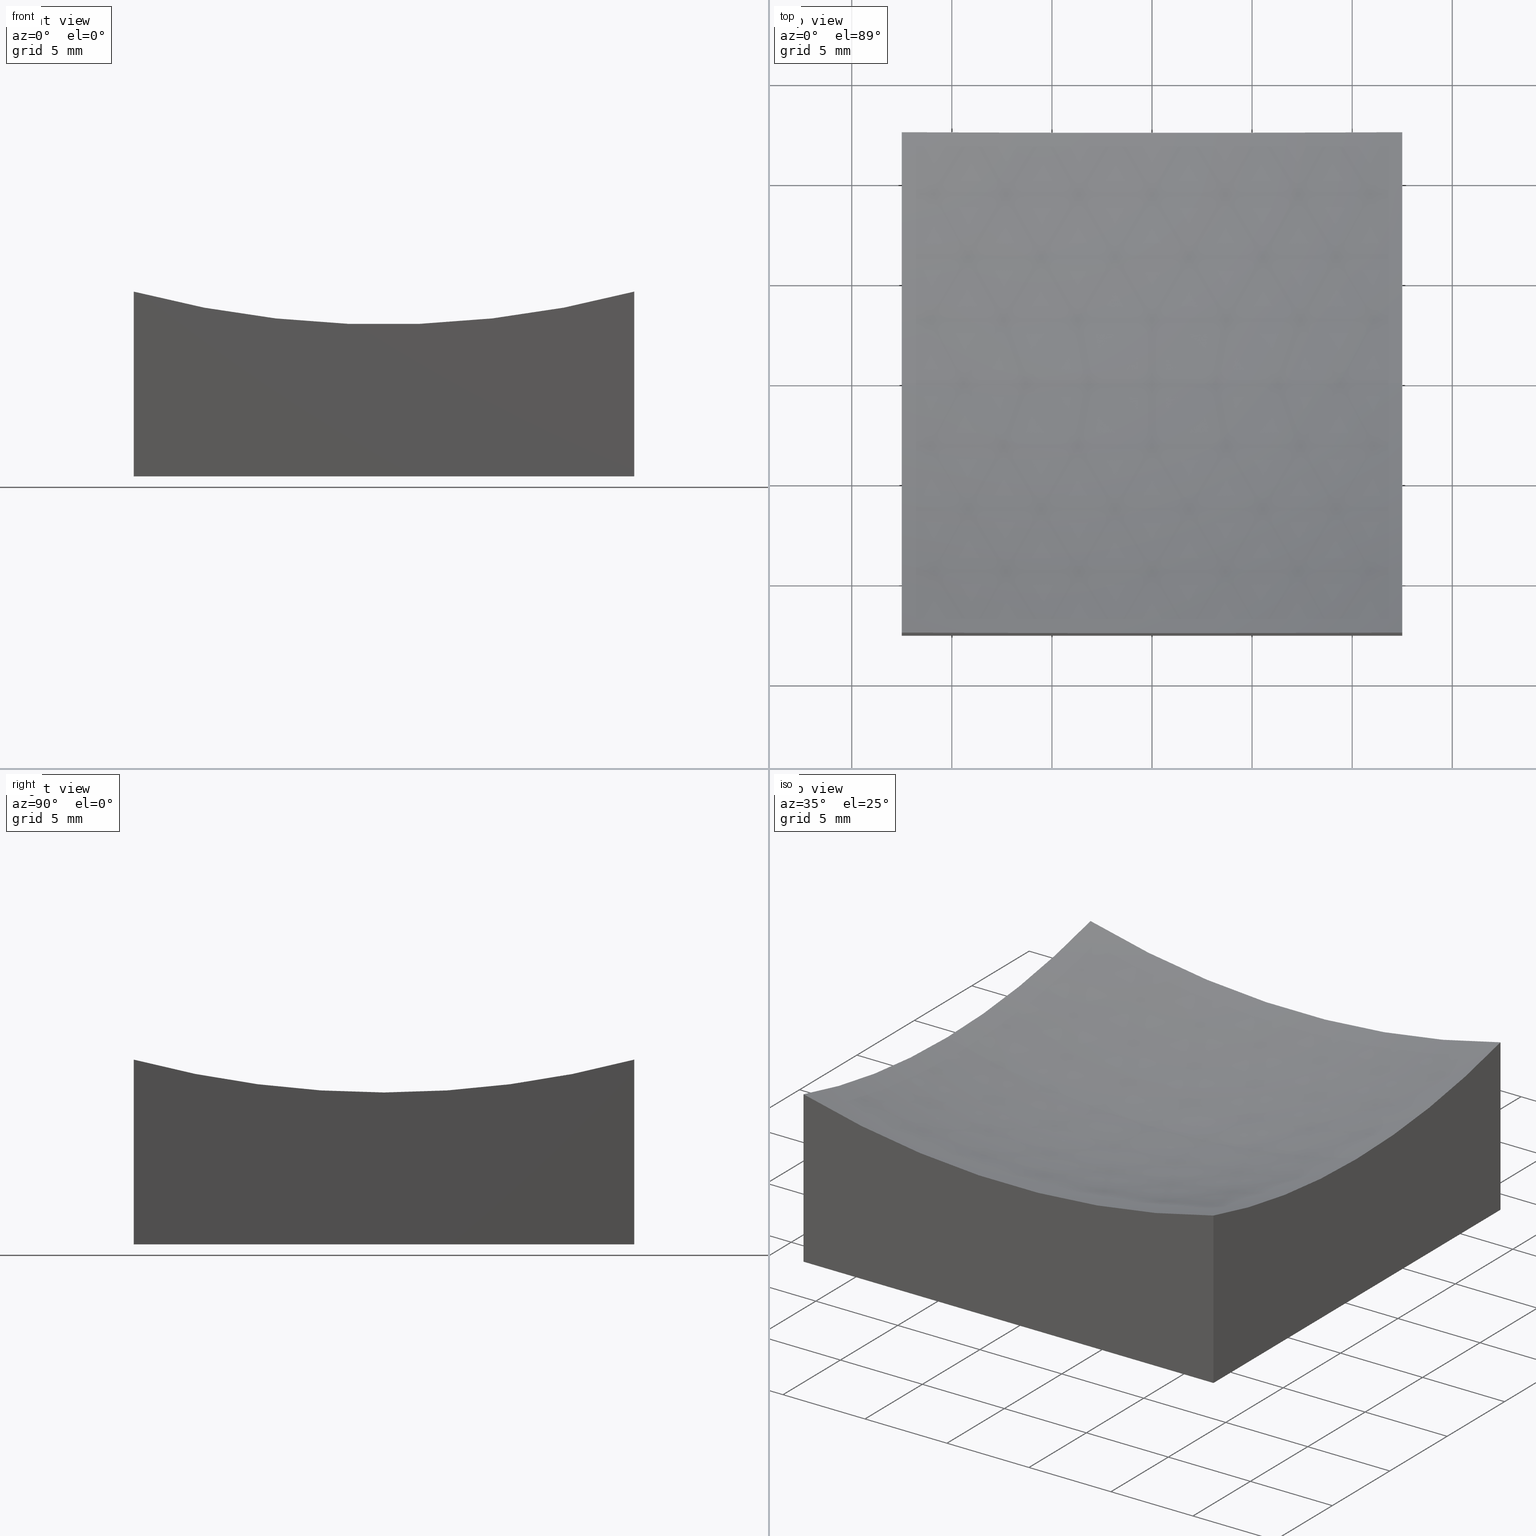
[diagram: canonical four-view strip — front | top / right | iso, engineering-drawing reading convention]
A machine part, canonical four-view strip (front | top / right | iso — engineering-drawing reading convention). The complete STEP part file that produces these views, byte-faithful:
ISO-10303-21;
HEADER;
FILE_DESCRIPTION (( 'STEP AP214' ),
    '1' );
FILE_NAME ('270032.STEP',
    '2020-06-05T05:42:06',
    ( '' ),
    ( '' ),
    'SwSTEP 2.0',
    'SolidWorks 2019',
    '' );
FILE_SCHEMA (( 'AUTOMOTIVE_DESIGN' ));
ENDSEC;

DATA;
#1 = VECTOR ( 'NONE', #69, 1000.000000000000000 ) ;
#2 = FACE_OUTER_BOUND ( 'NONE', #224, .T. ) ;
#3 = VERTEX_POINT ( 'NONE', #133 ) ;
#4 = STYLED_ITEM ( 'NONE', ( #85 ), #55 ) ;
#5 = EDGE_CURVE ( 'NONE', #113, #237, #131, .T. ) ;
#6 = CARTESIAN_POINT ( 'NONE',  ( -12.49999999999999645, -12.50000000000000000, 0.0000000000000000000 ) ) ;
#7 = ORIENTED_EDGE ( 'NONE', *, *, #142, .T. ) ;
#8 = ORIENTED_EDGE ( 'NONE', *, *, #23, .T. ) ;
#9 = ORIENTED_EDGE ( 'NONE', *, *, #219, .F. ) ;
#10 = DIRECTION ( 'NONE',  ( 1.000000000000000000, 0.0000000000000000000, 0.0000000000000000000 ) ) ;
#11 = CARTESIAN_POINT ( 'NONE',  ( 12.50000000000000355, -12.50000000000000000, 20.00000000000000000 ) ) ;
#12 = CIRCLE ( 'NONE', #17, 50.00000000000000000 ) ;
#13 = CARTESIAN_POINT ( 'NONE',  ( 12.50000000000000000, 12.50000000000000000, 20.00000000000000000 ) ) ;
#14 = ADVANCED_FACE ( 'NONE', ( #32 ), #189, .F. ) ;
#15 = DIRECTION ( 'NONE',  ( 0.0000000000000000000, 1.000000000000000000, 0.0000000000000000000 ) ) ;
#16 = DIRECTION ( 'NONE',  ( -0.0000000000000000000, -0.0000000000000000000, -1.000000000000000000 ) ) ;
#17 = AXIS2_PLACEMENT_3D ( 'NONE', #217, #187, #167 ) ;
#18 = PRODUCT_DEFINITION_CONTEXT ( 'detailed design', #110, 'design' ) ;
#19 =( GEOMETRIC_REPRESENTATION_CONTEXT ( 3 ) GLOBAL_UNCERTAINTY_ASSIGNED_CONTEXT ( ( #115 ) ) GLOBAL_UNIT_ASSIGNED_CONTEXT ( ( #205, #105, #25 ) ) REPRESENTATION_CONTEXT ( 'NONE', 'WORKASPACE' ) );
#20 = DIRECTION ( 'NONE',  ( 0.0000000000000000000, 1.000000000000000000, 0.0000000000000000000 ) ) ;
#21 = ORIENTED_EDGE ( 'NONE', *, *, #171, .T. ) ;
#22 = DIRECTION ( 'NONE',  ( -0.0000000000000000000, 1.000000000000000000, 0.0000000000000000000 ) ) ;
#23 = EDGE_CURVE ( 'NONE', #168, #159, #73, .T. ) ;
#24 = VERTEX_POINT ( 'NONE', #239 ) ;
#25 =( NAMED_UNIT ( * ) SI_UNIT ( $, .STERADIAN. ) SOLID_ANGLE_UNIT ( ) );
#26 = ORIENTED_EDGE ( 'NONE', *, *, #5, .T. ) ;
#27 = EDGE_CURVE ( 'NONE', #169, #113, #225, .T. ) ;
#28 = VECTOR ( 'NONE', #207, 1000.000000000000000 ) ;
#29 = DIRECTION ( 'NONE',  ( -0.0000000000000000000, -0.0000000000000000000, -1.000000000000000000 ) ) ;
#30 = EDGE_LOOP ( 'NONE', ( #75, #92, #238, #90, #52 ) ) ;
#31 = LINE ( 'NONE', #144, #53 ) ;
#32 = FACE_OUTER_BOUND ( 'NONE', #114, .T. ) ;
#33 = MANIFOLD_SOLID_BREP ( '�г�-��ת2', #175 ) ;
#34 = FILL_AREA_STYLE ('',( #208 ) ) ;
#35 = DIRECTION ( 'NONE',  ( -0.0000000000000000000, 1.000000000000000000, 0.0000000000000000000 ) ) ;
#36 = SURFACE_STYLE_USAGE ( .BOTH. , #126 ) ;
#37 = DIRECTION ( 'NONE',  ( 0.0000000000000000000, 1.000000000000000000, 0.0000000000000000000 ) ) ;
#38 = CARTESIAN_POINT ( 'NONE',  ( -12.50000000000000000, 12.50000000000000000, 9.229282665325730051 ) ) ;
#39 = MECHANICAL_DESIGN_GEOMETRIC_PRESENTATION_REPRESENTATION (  '', ( #128 ), #106 ) ;
#40 = FACE_OUTER_BOUND ( 'NONE', #30, .T. ) ;
#41 = CIRCLE ( 'NONE', #77, 48.41229182759271055 ) ;
#42 = DIRECTION ( 'NONE',  ( -1.433291761649752693E-16, 1.000000000000000000, 0.0000000000000000000 ) ) ;
#43 = EDGE_CURVE ( 'NONE', #3, #24, #118, .T. ) ;
#44 =( NAMED_UNIT ( * ) SI_UNIT ( $, .STERADIAN. ) SOLID_ANGLE_UNIT ( ) );
#45 = DIRECTION ( 'NONE',  ( -1.433291761649752693E-16, 1.000000000000000000, 0.0000000000000000000 ) ) ;
#46 = CARTESIAN_POINT ( 'NONE',  ( 12.50000000000000000, -9.629649721936179265E-32, 7.587708172407285012 ) ) ;
#47 = SURFACE_STYLE_FILL_AREA ( #34 ) ;
#48 = FILL_AREA_STYLE ('',( #104 ) ) ;
#49 = AXIS2_PLACEMENT_3D ( 'NONE', #222, #248, #135 ) ;
#50 = EDGE_LOOP ( 'NONE', ( #204, #218, #145, #183 ) ) ;
#51 = SHAPE_DEFINITION_REPRESENTATION ( #100, #55 ) ;
#52 = ORIENTED_EDGE ( 'NONE', *, *, #127, .F. ) ;
#53 = VECTOR ( 'NONE', #140, 1000.000000000000000 ) ;
#54 = EDGE_LOOP ( 'NONE', ( #188, #21, #7, #72, #66 ) ) ;
#55 = ADVANCED_BREP_SHAPE_REPRESENTATION ( '270032', ( #33, #117 ), #137 ) ;
#56 = PRODUCT_CONTEXT ( 'NONE', #177, 'mechanical' ) ;
#57 = PLANE ( 'NONE',  #202 ) ;
#58 = DIRECTION ( 'NONE',  ( 0.0000000000000000000, 0.0000000000000000000, 1.000000000000000000 ) ) ;
#59 = DIRECTION ( 'NONE',  ( 0.0000000000000000000, -0.0000000000000000000, 1.000000000000000000 ) ) ;
#60 =( LENGTH_UNIT ( ) NAMED_UNIT ( * ) SI_UNIT ( .MILLI., .METRE. ) );
#61 = AXIS2_PLACEMENT_3D ( 'NONE', #226, #161, #233 ) ;
#62 = AXIS2_PLACEMENT_3D ( 'NONE', #216, #35, #10 ) ;
#63 = CARTESIAN_POINT ( 'NONE',  ( -12.49999999999999645, -12.50000000000000000, 9.229282665325730051 ) ) ;
#64 = EDGE_CURVE ( 'NONE', #3, #190, #147, .T. ) ;
#65 = FACE_OUTER_BOUND ( 'NONE', #88, .T. ) ;
#66 = ORIENTED_EDGE ( 'NONE', *, *, #219, .T. ) ;
#67 = CARTESIAN_POINT ( 'NONE',  ( 12.50000000000000000, 12.50000000000000000, 0.0000000000000000000 ) ) ;
#68 = APPLICATION_PROTOCOL_DEFINITION ( 'draft international standard', 'automotive_design', 1998, #177 ) ;
#69 = DIRECTION ( 'NONE',  ( 1.000000000000000000, 0.0000000000000000000, 0.0000000000000000000 ) ) ;
#70 = ORIENTED_EDGE ( 'NONE', *, *, #235, .T. ) ;
#71 = LINE ( 'NONE', #6, #1 ) ;
#72 = ORIENTED_EDGE ( 'NONE', *, *, #27, .T. ) ;
#73 = CIRCLE ( 'NONE', #220, 50.00000000000000000 ) ;
#74 = ORIENTED_EDGE ( 'NONE', *, *, #180, .T. ) ;
#75 = ORIENTED_EDGE ( 'NONE', *, *, #64, .F. ) ;
#76 = ORIENTED_EDGE ( 'NONE', *, *, #27, .F. ) ;
#77 = AXIS2_PLACEMENT_3D ( 'NONE', #87, #236, #45 ) ;
#78 = PLANE ( 'NONE',  #196 ) ;
#79 = DIRECTION ( 'NONE',  ( 0.0000000000000000000, 0.0000000000000000000, 1.000000000000000000 ) ) ;
#80 = PLANE ( 'NONE',  #96 ) ;
#81 = DIRECTION ( 'NONE',  ( -1.387778780781445676E-16, 1.000000000000000000, 0.0000000000000000000 ) ) ;
#82 = PRODUCT_RELATED_PRODUCT_CATEGORY ( 'part', '', ( #223 ) ) ;
#83 = CIRCLE ( 'NONE', #86, 48.41229182759271765 ) ;
#84 = PLANE ( 'NONE',  #61 ) ;
#85 = PRESENTATION_STYLE_ASSIGNMENT (( #201 ) ) ;
#86 = AXIS2_PLACEMENT_3D ( 'NONE', #174, #245, #228 ) ;
#87 = CARTESIAN_POINT ( 'NONE',  ( -12.49999999999999822, -1.734723475976807883E-15, 56.00000000000000000 ) ) ;
#88 = EDGE_LOOP ( 'NONE', ( #93, #240, #91, #76 ) ) ;
#89 = DIRECTION ( 'NONE',  ( 1.387778780781445676E-16, -1.000000000000000000, 0.0000000000000000000 ) ) ;
#90 = ORIENTED_EDGE ( 'NONE', *, *, #197, .F. ) ;
#91 = ORIENTED_EDGE ( 'NONE', *, *, #5, .F. ) ;
#92 = ORIENTED_EDGE ( 'NONE', *, *, #43, .T. ) ;
#93 = ORIENTED_EDGE ( 'NONE', *, *, #155, .F. ) ;
#94 = PLANE ( 'NONE',  #193 ) ;
#95 = VECTOR ( 'NONE', #89, 1000.000000000000000 ) ;
#96 = AXIS2_PLACEMENT_3D ( 'NONE', #13, #156, #81 ) ;
#97 = CARTESIAN_POINT ( 'NONE',  ( -12.49999999999999645, -12.50000000000000000, 20.00000000000000000 ) ) ;
#98 = ADVANCED_FACE ( 'NONE', ( #40 ), #80, .T. ) ;
#99 = CARTESIAN_POINT ( 'NONE',  ( 6.858022075225178552E-15, -12.50000000000000000, 56.00000000000000000 ) ) ;
#100 = PRODUCT_DEFINITION_SHAPE ( 'NONE', 'NONE',  #252 ) ;
#101 = EDGE_CURVE ( 'NONE', #109, #116, #119, .T. ) ;
#102 = DIRECTION ( 'NONE',  ( 0.0000000000000000000, 0.0000000000000000000, 1.000000000000000000 ) ) ;
#103 = ORIENTED_EDGE ( 'NONE', *, *, #247, .F. ) ;
#104 = FILL_AREA_STYLE_COLOUR ( '', #206 ) ;
#105 =( NAMED_UNIT ( * ) PLANE_ANGLE_UNIT ( ) SI_UNIT ( $, .RADIAN. ) );
#106 =( GEOMETRIC_REPRESENTATION_CONTEXT ( 3 ) GLOBAL_UNCERTAINTY_ASSIGNED_CONTEXT ( ( #139 ) ) GLOBAL_UNIT_ASSIGNED_CONTEXT ( ( #60, #138, #44 ) ) REPRESENTATION_CONTEXT ( 'NONE', 'WORKASPACE' ) );
#107 = CARTESIAN_POINT ( 'NONE',  ( 6.858022075225178552E-15, 0.0000000000000000000, 56.00000000000000000 ) ) ;
#108 = PRESENTATION_LAYER_ASSIGNMENT (  '', '', ( #4 ) ) ;
#109 = VERTEX_POINT ( 'NONE', #63 ) ;
#110 = APPLICATION_CONTEXT ( 'automotive_design' ) ;
#111 = EDGE_CURVE ( 'NONE', #3, #109, #203, .T. ) ;
#112 = ORIENTED_EDGE ( 'NONE', *, *, #64, .T. ) ;
#113 = VERTEX_POINT ( 'NONE', #157 ) ;
#114 = EDGE_LOOP ( 'NONE', ( #209, #8, #132, #215, #112 ) ) ;
#115 = UNCERTAINTY_MEASURE_WITH_UNIT (LENGTH_MEASURE( 1.000000000000000082E-05 ), #205, 'distance_accuracy_value', 'NONE');
#116 = VERTEX_POINT ( 'NONE', #178 ) ;
#117 = AXIS2_PLACEMENT_3D ( 'NONE', #213, #58, #210 ) ;
#118 = LINE ( 'NONE', #11, #130 ) ;
#119 = LINE ( 'NONE', #97, #244 ) ;
#120 = VECTOR ( 'NONE', #211, 1000.000000000000000 ) ;
#121 = ADVANCED_FACE ( 'NONE', ( #249 ), #94, .F. ) ;
#122 = DIRECTION ( 'NONE',  ( -1.387778780781445676E-16, 1.000000000000000000, 0.0000000000000000000 ) ) ;
#123 = SPHERICAL_SURFACE ( 'NONE', #124, 50.00000000000000000 ) ;
#124 = AXIS2_PLACEMENT_3D ( 'NONE', #107, #22, #200 ) ;
#125 =( LENGTH_UNIT ( ) NAMED_UNIT ( * ) SI_UNIT ( .MILLI., .METRE. ) );
#126 = SURFACE_SIDE_STYLE ('',( #47 ) ) ;
#127 = EDGE_CURVE ( 'NONE', #190, #182, #83, .T. ) ;
#128 = STYLED_ITEM ( 'NONE', ( #195 ), #33 ) ;
#129 = SURFACE_STYLE_FILL_AREA ( #48 ) ;
#130 = VECTOR ( 'NONE', #192, 1000.000000000000000 ) ;
#131 = LINE ( 'NONE', #143, #28 ) ;
#132 = ORIENTED_EDGE ( 'NONE', *, *, #171, .F. ) ;
#133 = CARTESIAN_POINT ( 'NONE',  ( 12.50000000000000355, -12.50000000000000000, 9.229282665325730051 ) ) ;
#134 = CARTESIAN_POINT ( 'NONE',  ( -12.50000000000000000, 12.50000000000000000, 20.00000000000000000 ) ) ;
#135 = DIRECTION ( 'NONE',  ( -1.433291761649752447E-16, 1.000000000000000000, 0.0000000000000000000 ) ) ;
#136 = VECTOR ( 'NONE', #29, 1000.000000000000000 ) ;
#137 =( GEOMETRIC_REPRESENTATION_CONTEXT ( 3 ) GLOBAL_UNCERTAINTY_ASSIGNED_CONTEXT ( ( #151 ) ) GLOBAL_UNIT_ASSIGNED_CONTEXT ( ( #125, #184, #221 ) ) REPRESENTATION_CONTEXT ( 'NONE', 'WORKASPACE' ) );
#138 =( NAMED_UNIT ( * ) PLANE_ANGLE_UNIT ( ) SI_UNIT ( $, .RADIAN. ) );
#139 = UNCERTAINTY_MEASURE_WITH_UNIT (LENGTH_MEASURE( 1.000000000000000082E-05 ), #60, 'distance_accuracy_value', 'NONE');
#140 = DIRECTION ( 'NONE',  ( 1.387778780781445676E-16, -1.000000000000000000, 0.0000000000000000000 ) ) ;
#141 = CARTESIAN_POINT ( 'NONE',  ( -12.50000000000000000, 12.50000000000000000, 0.0000000000000000000 ) ) ;
#142 = EDGE_CURVE ( 'NONE', #159, #169, #231, .T. ) ;
#143 = CARTESIAN_POINT ( 'NONE',  ( -12.50000000000000000, 12.50000000000000000, 0.0000000000000000000 ) ) ;
#144 = CARTESIAN_POINT ( 'NONE',  ( 12.50000000000000000, 12.50000000000000000, 0.0000000000000000000 ) ) ;
#145 = ORIENTED_EDGE ( 'NONE', *, *, #101, .T. ) ;
#146 = SURFACE_SIDE_STYLE ('',( #129 ) ) ;
#147 = CIRCLE ( 'NONE', #49, 48.41229182759271765 ) ;
#148 = CARTESIAN_POINT ( 'NONE',  ( -12.50000000000000000, 12.50000000000000000, 20.00000000000000000 ) ) ;
#149 = ORIENTED_EDGE ( 'NONE', *, *, #127, .T. ) ;
#150 = ADVANCED_FACE ( 'NONE', ( #176 ), #78, .F. ) ;
#151 = UNCERTAINTY_MEASURE_WITH_UNIT (LENGTH_MEASURE( 1.000000000000000082E-05 ), #125, 'distance_accuracy_value', 'NONE');
#152 = DIRECTION ( 'NONE',  ( -1.000000000000000000, 1.224646799147353207E-16, 0.0000000000000000000 ) ) ;
#153 = CARTESIAN_POINT ( 'NONE',  ( -12.50000000000000000, 12.50000000000000000, 20.00000000000000000 ) ) ;
#154 = MECHANICAL_DESIGN_GEOMETRIC_PRESENTATION_REPRESENTATION (  '', ( #4 ), #19 ) ;
#155 = EDGE_CURVE ( 'NONE', #182, #169, #173, .T. ) ;
#156 = DIRECTION ( 'NONE',  ( 1.000000000000000000, 1.387778780781445676E-16, -0.0000000000000000000 ) ) ;
#157 = CARTESIAN_POINT ( 'NONE',  ( -12.50000000000000000, 12.50000000000000000, 0.0000000000000000000 ) ) ;
#158 = DIRECTION ( 'NONE',  ( 0.0000000000000000000, -0.0000000000000000000, 1.000000000000000000 ) ) ;
#159 = VERTEX_POINT ( 'NONE', #179 ) ;
#160 = PRESENTATION_LAYER_ASSIGNMENT (  '', '', ( #128 ) ) ;
#161 = DIRECTION ( 'NONE',  ( 0.0000000000000000000, 0.0000000000000000000, -1.000000000000000000 ) ) ;
#162 = ADVANCED_FACE ( 'NONE', ( #250 ), #84, .T. ) ;
#163 = CARTESIAN_POINT ( 'NONE',  ( 12.50000000000000000, 12.50000000000000000, 9.229282665325730051 ) ) ;
#164 = LINE ( 'NONE', #141, #95 ) ;
#165 = ADVANCED_FACE ( 'NONE', ( #65 ), #57, .T. ) ;
#166 = ORIENTED_EDGE ( 'NONE', *, *, #142, .F. ) ;
#167 = DIRECTION ( 'NONE',  ( 0.0000000000000000000, 0.0000000000000000000, -1.000000000000000000 ) ) ;
#168 = VERTEX_POINT ( 'NONE', #214 ) ;
#169 = VERTEX_POINT ( 'NONE', #38 ) ;
#170 = ORIENTED_EDGE ( 'NONE', *, *, #155, .T. ) ;
#171 = EDGE_CURVE ( 'NONE', #109, #159, #41, .T. ) ;
#172 = CARTESIAN_POINT ( 'NONE',  ( 6.858022075225178552E-15, 0.0000000000000000000, 56.00000000000000000 ) ) ;
#173 = CIRCLE ( 'NONE', #185, 48.41229182759270344 ) ;
#174 = CARTESIAN_POINT ( 'NONE',  ( 12.50000000000000178, 1.734723475976806503E-15, 56.00000000000000000 ) ) ;
#175 = CLOSED_SHELL ( 'NONE', ( #14, #165, #150, #121, #98, #162, #229 ) ) ;
#176 = FACE_OUTER_BOUND ( 'NONE', #54, .T. ) ;
#177 = APPLICATION_CONTEXT ( 'automotive_design' ) ;
#178 = CARTESIAN_POINT ( 'NONE',  ( -12.49999999999999645, -12.50000000000000000, 0.0000000000000000000 ) ) ;
#179 = CARTESIAN_POINT ( 'NONE',  ( -12.49999999999999822, 1.530808498934192113E-15, 7.587708172407288565 ) ) ;
#180 = EDGE_CURVE ( 'NONE', #237, #24, #31, .T. ) ;
#181 = COLOUR_RGB ( '',1.000000000000000000, 1.000000000000000000, 1.000000000000000000 ) ;
#182 = VERTEX_POINT ( 'NONE', #163 ) ;
#183 = ORIENTED_EDGE ( 'NONE', *, *, #247, .T. ) ;
#184 =( NAMED_UNIT ( * ) PLANE_ANGLE_UNIT ( ) SI_UNIT ( $, .RADIAN. ) );
#185 = AXIS2_PLACEMENT_3D ( 'NONE', #198, #20, #102 ) ;
#186 = ORIENTED_EDGE ( 'NONE', *, *, #23, .F. ) ;
#187 = DIRECTION ( 'NONE',  ( 0.0000000000000000000, -1.000000000000000000, 0.0000000000000000000 ) ) ;
#188 = ORIENTED_EDGE ( 'NONE', *, *, #101, .F. ) ;
#189 = SPHERICAL_SURFACE ( 'NONE', #62, 50.00000000000000000 ) ;
#190 = VERTEX_POINT ( 'NONE', #46 ) ;
#191 = EDGE_LOOP ( 'NONE', ( #26, #74, #103, #9 ) ) ;
#192 = DIRECTION ( 'NONE',  ( -0.0000000000000000000, -0.0000000000000000000, -1.000000000000000000 ) ) ;
#193 = AXIS2_PLACEMENT_3D ( 'NONE', #227, #15, #158 ) ;
#194 = DIRECTION ( 'NONE',  ( 0.0000000000000000000, 1.000000000000000000, 0.0000000000000000000 ) ) ;
#195 = PRESENTATION_STYLE_ASSIGNMENT (( #36 ) ) ;
#196 = AXIS2_PLACEMENT_3D ( 'NONE', #153, #212, #122 ) ;
#197 = EDGE_CURVE ( 'NONE', #182, #237, #251, .T. ) ;
#198 = CARTESIAN_POINT ( 'NONE',  ( 6.858022075225178552E-15, 12.50000000000000000, 56.00000000000000000 ) ) ;
#199 = PRODUCT_DEFINITION_FORMATION_WITH_SPECIFIED_SOURCE ( '�κ�', '', #223, .NOT_KNOWN. ) ;
#200 = DIRECTION ( 'NONE',  ( 1.000000000000000000, 0.0000000000000000000, 0.0000000000000000000 ) ) ;
#201 = SURFACE_STYLE_USAGE ( .BOTH. , #146 ) ;
#202 = AXIS2_PLACEMENT_3D ( 'NONE', #134, #37, #59 ) ;
#203 = CIRCLE ( 'NONE', #232, 48.41229182759270344 ) ;
#204 = ORIENTED_EDGE ( 'NONE', *, *, #43, .F. ) ;
#205 =( LENGTH_UNIT ( ) NAMED_UNIT ( * ) SI_UNIT ( .MILLI., .METRE. ) );
#206 = COLOUR_RGB ( '',1.000000000000000000, 1.000000000000000000, 1.000000000000000000 ) ;
#207 = DIRECTION ( 'NONE',  ( 1.000000000000000000, 0.0000000000000000000, 0.0000000000000000000 ) ) ;
#208 = FILL_AREA_STYLE_COLOUR ( '', #181 ) ;
#209 = ORIENTED_EDGE ( 'NONE', *, *, #235, .F. ) ;
#210 = DIRECTION ( 'NONE',  ( 1.000000000000000000, 0.0000000000000000000, 0.0000000000000000000 ) ) ;
#211 = DIRECTION ( 'NONE',  ( -0.0000000000000000000, -0.0000000000000000000, -1.000000000000000000 ) ) ;
#212 = DIRECTION ( 'NONE',  ( 1.000000000000000000, 1.387778780781445676E-16, -0.0000000000000000000 ) ) ;
#213 = CARTESIAN_POINT ( 'NONE',  ( 0.0000000000000000000, 0.0000000000000000000, 0.0000000000000000000 ) ) ;
#214 = CARTESIAN_POINT ( 'NONE',  ( 9.944968777644552630E-15, 0.0000000000000000000, 5.999999999999998224 ) ) ;
#215 = ORIENTED_EDGE ( 'NONE', *, *, #111, .F. ) ;
#216 = CARTESIAN_POINT ( 'NONE',  ( 6.858022075225178552E-15, 0.0000000000000000000, 56.00000000000000000 ) ) ;
#217 = CARTESIAN_POINT ( 'NONE',  ( 6.858022075225178552E-15, 0.0000000000000000000, 56.00000000000000000 ) ) ;
#218 = ORIENTED_EDGE ( 'NONE', *, *, #111, .T. ) ;
#219 = EDGE_CURVE ( 'NONE', #113, #116, #164, .T. ) ;
#220 = AXIS2_PLACEMENT_3D ( 'NONE', #172, #241, #152 ) ;
#221 =( NAMED_UNIT ( * ) SI_UNIT ( $, .STERADIAN. ) SOLID_ANGLE_UNIT ( ) );
#222 = CARTESIAN_POINT ( 'NONE',  ( 12.50000000000000178, 1.734723475976806503E-15, 56.00000000000000000 ) ) ;
#223 = PRODUCT ( '270032', '270032', '', ( #56 ) ) ;
#224 = EDGE_LOOP ( 'NONE', ( #186, #70, #149, #170, #166 ) ) ;
#225 = LINE ( 'NONE', #148, #120 ) ;
#226 = CARTESIAN_POINT ( 'NONE',  ( 0.0000000000000000000, 0.0000000000000000000, 0.0000000000000000000 ) ) ;
#227 = CARTESIAN_POINT ( 'NONE',  ( -12.49999999999999645, -12.50000000000000000, 20.00000000000000000 ) ) ;
#228 = DIRECTION ( 'NONE',  ( -1.433291761649752447E-16, 1.000000000000000000, 0.0000000000000000000 ) ) ;
#229 = ADVANCED_FACE ( 'NONE', ( #2 ), #123, .F. ) ;
#230 = DIRECTION ( 'NONE',  ( 1.000000000000000000, 1.387778780781445676E-16, -0.0000000000000000000 ) ) ;
#231 = CIRCLE ( 'NONE', #242, 48.41229182759271055 ) ;
#232 = AXIS2_PLACEMENT_3D ( 'NONE', #99, #194, #79 ) ;
#233 = DIRECTION ( 'NONE',  ( -1.000000000000000000, 0.0000000000000000000, -0.0000000000000000000 ) ) ;
#234 = CARTESIAN_POINT ( 'NONE',  ( 12.50000000000000000, 12.50000000000000000, 20.00000000000000000 ) ) ;
#235 = EDGE_CURVE ( 'NONE', #168, #190, #12, .T. ) ;
#236 = DIRECTION ( 'NONE',  ( 1.000000000000000000, 1.387778780781445676E-16, -0.0000000000000000000 ) ) ;
#237 = VERTEX_POINT ( 'NONE', #67 ) ;
#238 = ORIENTED_EDGE ( 'NONE', *, *, #180, .F. ) ;
#239 = CARTESIAN_POINT ( 'NONE',  ( 12.50000000000000355, -12.50000000000000000, 0.0000000000000000000 ) ) ;
#240 = ORIENTED_EDGE ( 'NONE', *, *, #197, .T. ) ;
#241 = DIRECTION ( 'NONE',  ( 1.224646799147353207E-16, 1.000000000000000000, 6.203988320343982129E-35 ) ) ;
#242 = AXIS2_PLACEMENT_3D ( 'NONE', #246, #230, #42 ) ;
#243 = APPLICATION_PROTOCOL_DEFINITION ( 'draft international standard', 'automotive_design', 1998, #110 ) ;
#244 = VECTOR ( 'NONE', #16, 1000.000000000000000 ) ;
#245 = DIRECTION ( 'NONE',  ( 1.000000000000000000, 1.387778780781445676E-16, -0.0000000000000000000 ) ) ;
#246 = CARTESIAN_POINT ( 'NONE',  ( -12.49999999999999822, -1.734723475976807883E-15, 56.00000000000000000 ) ) ;
#247 = EDGE_CURVE ( 'NONE', #116, #24, #71, .T. ) ;
#248 = DIRECTION ( 'NONE',  ( 1.000000000000000000, 1.387778780781445676E-16, -0.0000000000000000000 ) ) ;
#249 = FACE_OUTER_BOUND ( 'NONE', #50, .T. ) ;
#250 = FACE_OUTER_BOUND ( 'NONE', #191, .T. ) ;
#251 = LINE ( 'NONE', #234, #136 ) ;
#252 = PRODUCT_DEFINITION ( 'δ֪', '', #199, #18 ) ;
ENDSEC;
END-ISO-10303-21;
